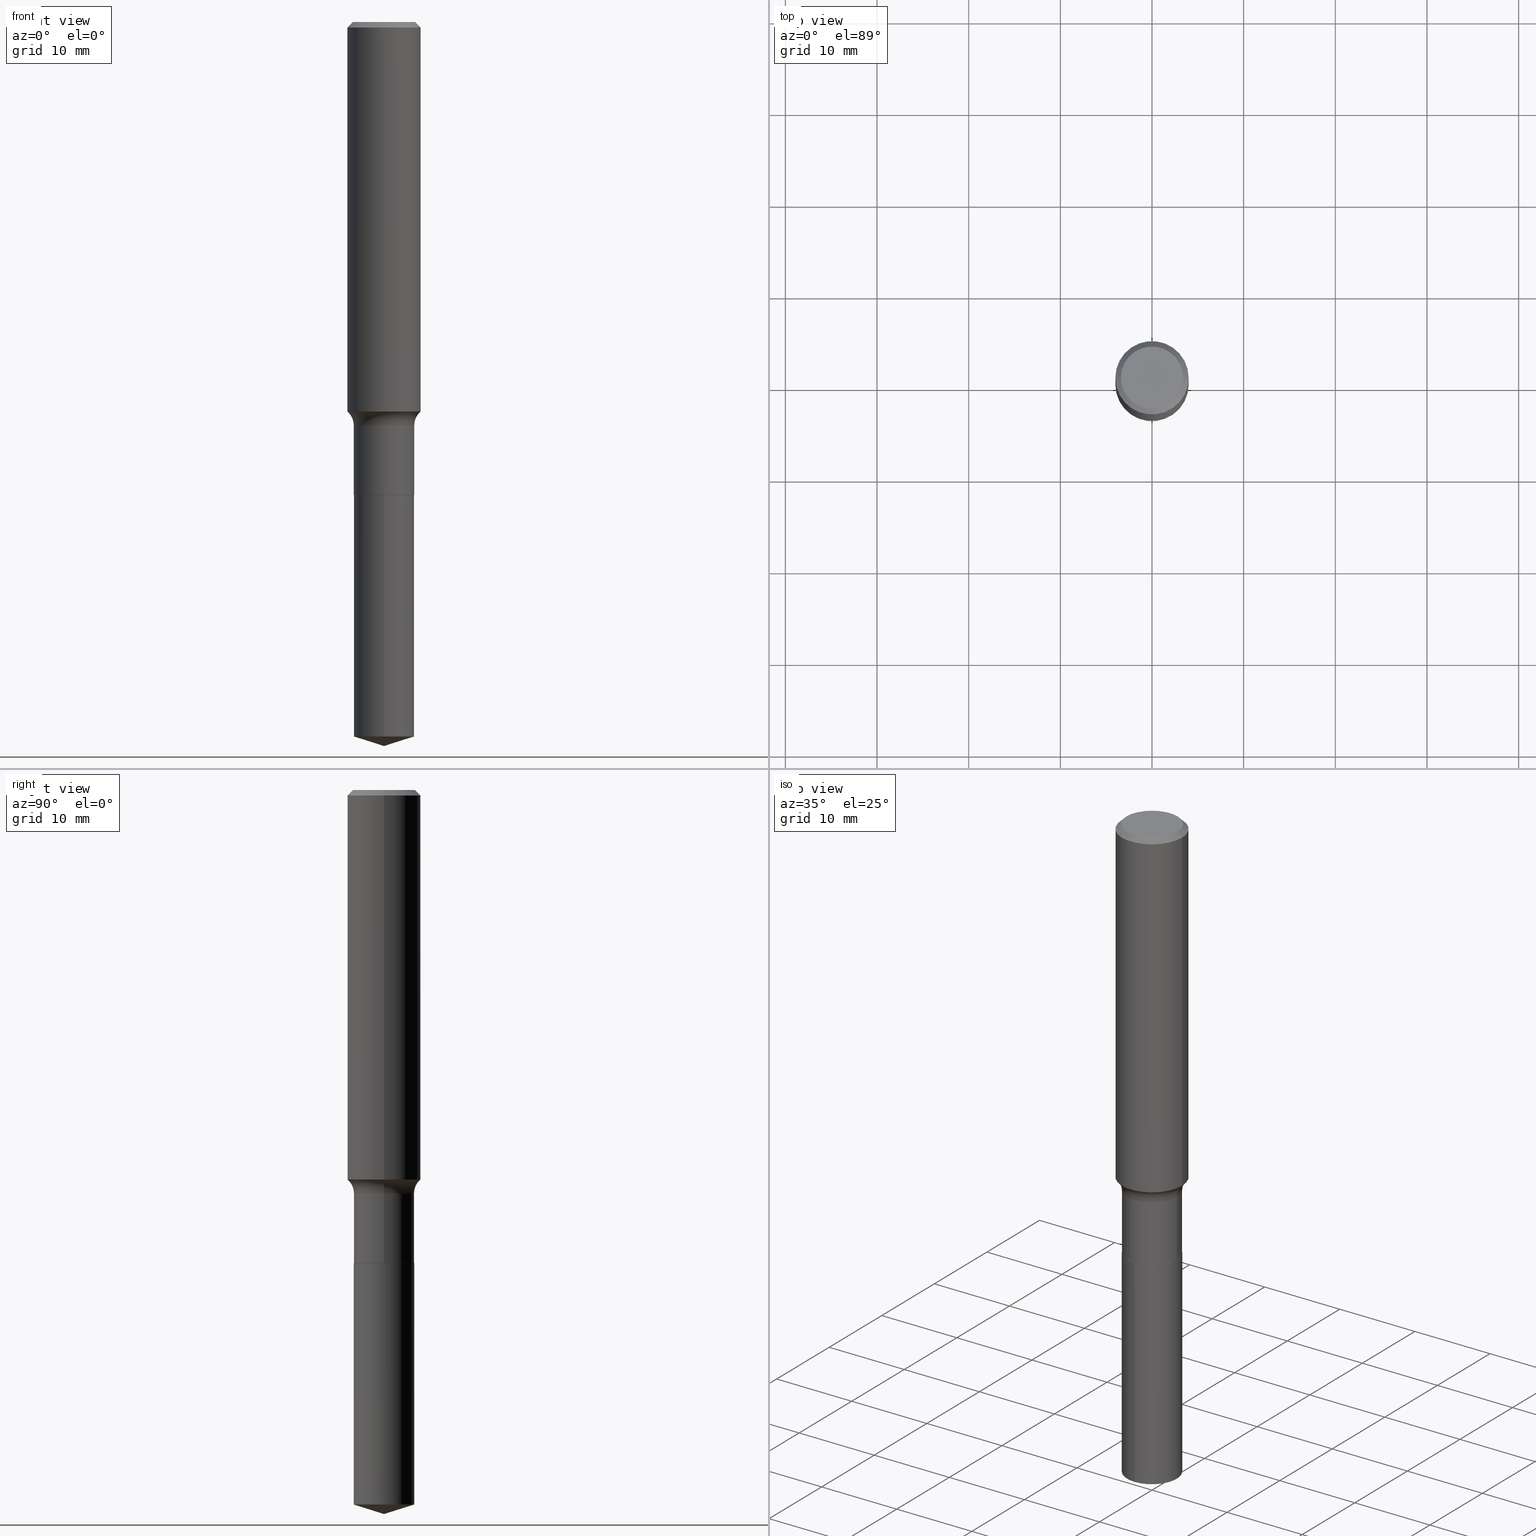
[diagram: canonical four-view strip — front | top / right | iso, engineering-drawing reading convention]
A machine part, canonical four-view strip (front | top / right | iso — engineering-drawing reading convention). The complete STEP part file that produces these views, byte-faithful:
ISO-10303-21;
HEADER;
FILE_DESCRIPTION (( 'STEP AP203' ),
    '1' );
FILE_NAME ('63757.STEP',
    '2024-04-19T15:07:55',
    ( '' ),
    ( '' ),
    'SwSTEP 2.0',
    'SolidWorks 2023',
    '' );
FILE_SCHEMA (( 'CONFIG_CONTROL_DESIGN' ));
ENDSEC;

DATA;
#1 = APPROVAL_PERSON_ORGANIZATION ( #460, #87, #428 ) ;
#2 = ORIENTED_EDGE ( 'NONE', *, *, #159, .F. ) ;
#3 = DIRECTION ( 'NONE',  ( 1.000000000000000000, -6.982962677686267499E-15, 4.876176775795936353E-29 ) ) ;
#4 = CC_DESIGN_PERSON_AND_ORGANIZATION_ASSIGNMENT ( #132, #359, ( #409 ) ) ;
#5 = ORIENTED_EDGE ( 'NONE', *, *, #432, .T. ) ;
#6 = CARTESIAN_POINT ( 'NONE',  ( 4.967725332884486328E-29, -7.092595191725966323E-15, -2.031400000000000095 ) ) ;
#7 = VECTOR ( 'NONE', #348, 39.37007874015748854 ) ;
#8 = FACE_OUTER_BOUND ( 'NONE', #310, .T. ) ;
#9 = LINE ( 'NONE', #272, #317 ) ;
#10 = AXIS2_PLACEMENT_3D ( 'NONE', #109, #303, #153 ) ;
#11 = CARTESIAN_POINT ( 'NONE',  ( 9.229950137524451930E-16, 0.1298999999999928823, -2.031400000000000539 ) ) ;
#12 = PLANE ( 'NONE',  #227 ) ;
#13 = CARTESIAN_POINT ( 'NONE',  ( 4.237019253596368185E-29, -6.049340567679635558E-15, -1.732600000000000362 ) ) ;
#14 = ORIENTED_EDGE ( 'NONE', *, *, #165, .F. ) ;
#15 = APPROVAL_ROLE ( '' ) ;
#16 = ORIENTED_EDGE ( 'NONE', *, *, #100, .F. ) ;
#17 = CARTESIAN_POINT ( 'NONE',  ( -8.867023575948636875E-28, 1.266037926868653398E-13, 36.25987874015748247 ) ) ;
#18 = AXIS2_PLACEMENT_3D ( 'NONE', #47, #172, #331 ) ;
#19 = DIRECTION ( 'NONE',  ( -6.982962677686266711E-15, -1.000000000000000000, 4.206078512185163024E-15 ) ) ;
#20 = CARTESIAN_POINT ( 'NONE',  ( 0.1298999999999999877, -7.997936302887991205E-15, -2.030900000000000372 ) ) ;
#21 = CYLINDRICAL_SURFACE ( 'NONE', #18, 0.1298999999999999877 ) ;
#22 = CARTESIAN_POINT ( 'NONE',  ( 4.237019253596368185E-29, -6.049340567679635558E-15, -1.732600000000000362 ) ) ;
#23 = FACE_OUTER_BOUND ( 'NONE', #278, .T. ) ;
#24 = AXIS2_PLACEMENT_3D ( 'NONE', #17, #215, #211 ) ;
#25 = VERTEX_POINT ( 'NONE', #377 ) ;
#26 = CIRCLE ( 'NONE', #478, 0.1293999999999999873 ) ;
#27 = ORIENTED_EDGE ( 'NONE', *, *, #453, .T. ) ;
#28 = EDGE_CURVE ( 'NONE', #84, #105, #141, .T. ) ;
#29 = ORIENTED_EDGE ( 'NONE', *, *, #449, .T. ) ;
#30 = AXIS2_PLACEMENT_3D ( 'NONE', #354, #164, #402 ) ;
#31 = ORIENTED_EDGE ( 'NONE', *, *, #437, .T. ) ;
#32 = CARTESIAN_POINT ( 'NONE',  ( 0.2078999999999999460, -7.501098508370609991E-15, -1.732600000000000362 ) ) ;
#33 = EDGE_LOOP ( 'NONE', ( #421, #342, #408, #129 ) ) ;
#34 = AXIS2_PLACEMENT_3D ( 'NONE', #42, #236, #322 ) ;
#35 = CC_DESIGN_PERSON_AND_ORGANIZATION_ASSIGNMENT ( #56, #473, ( #259 ) ) ;
#36 = CYLINDRICAL_SURFACE ( 'NONE', #296, 0.1298999999999999877 ) ;
#37 = DIRECTION ( 'NONE',  ( -2.445468806185136597E-29, 3.491481338843145583E-15, 1.000000000000000000 ) ) ;
#38 = LINE ( 'NONE', #200, #7 ) ;
#39 = EDGE_CURVE ( 'NONE', #415, #410, #362, .T. ) ;
#40 = ORIENTED_EDGE ( 'NONE', *, *, #385, .F. ) ;
#41 = CIRCLE ( 'NONE', #34, 0.07800000000000002764 ) ;
#42 = CARTESIAN_POINT ( 'NONE',  ( -0.2078999999999999460, -4.572122220034387458E-15, -1.732600000000000362 ) ) ;
#43 = CC_DESIGN_PERSON_AND_ORGANIZATION_ASSIGNMENT ( #251, #470, ( #403 ) ) ;
#44 = DIRECTION ( 'NONE',  ( -0.7071067811865450192, 2.468850131082230634E-15, -0.7071067811865500152 ) ) ;
#45 = DIRECTION ( 'NONE',  ( -1.000000000000000000, 6.982962677686265922E-15, -4.876176775795935793E-29 ) ) ;
#46 = CIRCLE ( 'NONE', #76, 0.1293999999999999873 ) ;
#47 = CARTESIAN_POINT ( 'NONE',  ( 0.000000000000000000, 0.000000000000000000, 0.000000000000000000 ) ) ;
#48 = APPROVAL ( #185, 'UNSPECIFIED' ) ;
#49 = CARTESIAN_POINT ( 'NONE',  ( 0.000000000000000000, 0.000000000000000000, 0.000000000000000000 ) ) ;
#50 = CYLINDRICAL_SURFACE ( 'NONE', #339, 0.1298999999999999877 ) ;
#51 = FACE_OUTER_BOUND ( 'NONE', #33, .T. ) ;
#52 = CLOSED_SHELL ( 'NONE', ( #133, #400, #143, #306, #189, #216, #119, #325, #275, #311, #248, #280 ) ) ;
#53 = ORIENTED_EDGE ( 'NONE', *, *, #210, .T. ) ;
#54 = COORDINATED_UNIVERSAL_TIME_OFFSET ( 5, 0, .BEHIND. ) ;
#55 = CARTESIAN_POINT ( 'NONE',  ( 4.967725332884486328E-29, -7.092595191725966323E-15, -2.031400000000000095 ) ) ;
#56 = PERSON_AND_ORGANIZATION ( #144, #457 ) ;
#57 = AXIS2_PLACEMENT_3D ( 'NONE', #448, #117, #416 ) ;
#58 = LOCAL_TIME ( 11, 7, 55.00000000000000000, #397 ) ;
#59 = COORDINATED_UNIVERSAL_TIME_OFFSET ( 5, 0, .BEHIND. ) ;
#60 = ORIENTED_EDGE ( 'NONE', *, *, #196, .F. ) ;
#61 = EDGE_CURVE ( 'NONE', #108, #161, #369, .T. ) ;
#62 = CARTESIAN_POINT ( 'NONE',  ( -9.070868518313962938E-16, -0.1299000000000070654, -2.031399999999999650 ) ) ;
#63 = ORIENTED_EDGE ( 'NONE', *, *, #432, .F. ) ;
#64 = VECTOR ( 'NONE', #283, 39.37007874015748143 ) ;
#65 = PERSON_AND_ORGANIZATION ( #144, #457 ) ;
#66 = ADVANCED_FACE ( 'NONE', ( #266 ), #434, .T. ) ;
#67 = DIRECTION ( 'NONE',  ( 1.000000000000000000, -6.982962677686265133E-15, 0.000000000000000000 ) ) ;
#68 = ORIENTED_EDGE ( 'NONE', *, *, #73, .T. ) ;
#69 = ORIENTED_EDGE ( 'NONE', *, *, #474, .F. ) ;
#70 = ORIENTED_EDGE ( 'NONE', *, *, #100, .T. ) ;
#71 = APPROVAL_DATE_TIME ( #152, #48 ) ;
#72 = AXIS2_PLACEMENT_3D ( 'NONE', #358, #327, #19 ) ;
#73 = EDGE_CURVE ( 'NONE', #161, #108, #230, .T. ) ;
#74 = CARTESIAN_POINT ( 'NONE',  ( 0.1575000000000000011, -1.163014681279185964E-15, -0.02362500000000015282 ) ) ;
#75 = VERTEX_POINT ( 'NONE', #263 ) ;
#76 = AXIS2_PLACEMENT_3D ( 'NONE', #407, #340, #67 ) ;
#77 = LINE ( 'NONE', #384, #223 ) ;
#78 = ORIENTED_EDGE ( 'NONE', *, *, #97, .T. ) ;
#79 = LINE ( 'NONE', #74, #64 ) ;
#80 = EDGE_CURVE ( 'NONE', #373, #415, #209, .T. ) ;
#81 = CARTESIAN_POINT ( 'NONE',  ( -9.070868518313706558E-16, -0.1299000000000107014, -3.069242687324619467 ) ) ;
#82 = ORIENTED_EDGE ( 'NONE', *, *, #367, .T. ) ;
#83 = DIRECTION ( 'NONE',  ( -2.445412223702241221E-29, 3.491562368179126260E-15, 1.000000000000000000 ) ) ;
#84 = VERTEX_POINT ( 'NONE', #257 ) ;
#85 = DIRECTION ( 'NONE',  ( 0.7071067811866199593, -2.468850131083015945E-15, 0.7071067811864750752 ) ) ;
#86 = FACE_OUTER_BOUND ( 'NONE', #268, .T. ) ;
#87 = APPROVAL ( #131, 'UNSPECIFIED' ) ;
#88 = APPROVAL_DATE_TIME ( #246, #87 ) ;
#89 = ORIENTED_EDGE ( 'NONE', *, *, #267, .F. ) ;
#90 = DIRECTION ( 'NONE',  ( 1.000000000000000000, -6.982962677686267499E-15, 4.876176775795936353E-29 ) ) ;
#91 = DIRECTION ( 'NONE',  ( -2.445412223702241221E-29, 3.491562368179126260E-15, 1.000000000000000000 ) ) ;
#92 = UNCERTAINTY_MEASURE_WITH_UNIT (LENGTH_MEASURE( 1.000000000000000082E-05 ), #212, 'distance_accuracy_value', 'NONE');
#93 = CIRCLE ( 'NONE', #430, 0.1575000000000001954 ) ;
#94 = ORIENTED_EDGE ( 'NONE', *, *, #308, .T. ) ;
#95 = CC_DESIGN_APPROVAL ( #87, ( #409 ) ) ;
#96 = FACE_OUTER_BOUND ( 'NONE', #343, .T. ) ;
#97 = EDGE_CURVE ( 'NONE', #338, #98, #46, .T. ) ;
#98 = VERTEX_POINT ( 'NONE', #224 ) ;
#99 = VECTOR ( 'NONE', #44, 39.37007874015748143 ) ;
#100 = EDGE_CURVE ( 'NONE', #75, #161, #260, .T. ) ;
#101 = AXIS2_PLACEMENT_3D ( 'NONE', #6, #316, #450 ) ;
#102 = TOROIDAL_SURFACE ( 'NONE', #417, 0.2078999999999999460, 0.07800000000000002764 ) ;
#103 = LINE ( 'NONE', #262, #252 ) ;
#104 = CIRCLE ( 'NONE', #382, 0.1298999999999999877 ) ;
#105 = VERTEX_POINT ( 'NONE', #277 ) ;
#106 = CARTESIAN_POINT ( 'NONE',  ( -0.1575000000000000011, 1.017330375105417098E-15, -0.02362500000000015282 ) ) ;
#107 = DIRECTION ( 'NONE',  ( 1.000000000000000000, -6.982962677686265922E-15, 0.000000000000000000 ) ) ;
#108 = VERTEX_POINT ( 'NONE', #81 ) ;
#109 = CARTESIAN_POINT ( 'NONE',  ( -8.867023575948636875E-28, 1.266037926868653398E-13, 36.25987874015748247 ) ) ;
#110 = EDGE_LOOP ( 'NONE', ( #187, #70, #386 ) ) ;
#111 = DIRECTION ( 'NONE',  ( -2.445412223702241221E-29, 3.491562368179126654E-15, 1.000000000000000000 ) ) ;
#112 = ORIENTED_EDGE ( 'NONE', *, *, #437, .F. ) ;
#113 = CONICAL_SURFACE ( 'NONE', #24, 124.8659371009138965, 1.265363707695889017 ) ;
#114 = DIRECTION ( 'NONE',  ( -2.445412223702241221E-29, 3.491562368179126654E-15, 1.000000000000000000 ) ) ;
#115 = ORIENTED_EDGE ( 'NONE', *, *, #486, .F. ) ;
#116 = LINE ( 'NONE', #183, #375 ) ;
#117 = DIRECTION ( 'NONE',  ( 2.445468806185136597E-29, -3.491481338843145583E-15, -1.000000000000000000 ) ) ;
#118 = CARTESIAN_POINT ( 'NONE',  ( -0.1338749999999999940, 9.760872517903331886E-16, 4.101342130337804525E-18 ) ) ;
#119 = ADVANCED_FACE ( 'NONE', ( #388 ), #245, .F. ) ;
#120 = CLOSED_SHELL ( 'NONE', ( #145, #66, #139, #391, #333 ) ) ;
#121 = VECTOR ( 'NONE', #195, 39.37007874015748143 ) ;
#122 = CARTESIAN_POINT ( 'NONE',  ( 0.1293999999999999873, -7.996190562218568913E-15, -2.031400000000000095 ) ) ;
#123 = SECURITY_CLASSIFICATION ( '', '', #171 ) ;
#124 = DIRECTION ( 'NONE',  ( -0.7071067811866199593, 7.493145998870616062E-15, 0.7071067811864750752 ) ) ;
#125 = ORIENTED_EDGE ( 'NONE', *, *, #320, .F. ) ;
#126 = ORIENTED_EDGE ( 'NONE', *, *, #320, .T. ) ;
#127 = CARTESIAN_POINT ( 'NONE',  ( -5.014852121625167883E-47, 7.159879756154482429E-33, 2.050671065172242981E-18 ) ) ;
#128 = EDGE_CURVE ( 'NONE', #305, #447, #398, .T. ) ;
#129 = ORIENTED_EDGE ( 'NONE', *, *, #28, .T. ) ;
#130 = DIRECTION ( 'NONE',  ( 1.000000000000000000, -6.982962677686266711E-15, 4.876170806578254279E-29 ) ) ;
#131 = APPROVAL_STATUS ( 'not_yet_approved' ) ;
#132 = PERSON_AND_ORGANIZATION ( #144, #457 ) ;
#133 = ADVANCED_FACE ( 'NONE', ( #86 ), #238, .T. ) ;
#134 = DIRECTION ( 'NONE',  ( 1.000000000000000000, -6.982962677686268288E-15, 0.000000000000000000 ) ) ;
#135 = CIRCLE ( 'NONE', #468, 0.1298999999999999599 ) ;
#136 = APPROVAL_STATUS ( 'not_yet_approved' ) ;
#137 = DIRECTION ( 'NONE',  ( -2.445468806185136597E-29, 3.491481338843145583E-15, 1.000000000000000000 ) ) ;
#138 = DIRECTION ( 'NONE',  ( 2.445468806185136597E-29, -3.491481338843145583E-15, -1.000000000000000000 ) ) ;
#139 = ADVANCED_FACE ( 'NONE', ( #23 ), #113, .T. ) ;
#140 = DIRECTION ( 'NONE',  ( 1.000000000000000000, -6.982962677686266711E-15, 4.883557194083112901E-29 ) ) ;
#141 = CIRCLE ( 'NONE', #162, 0.1575000000000000011 ) ;
#142 = CALENDAR_DATE ( 2024, 19, 4 ) ;
#143 = ADVANCED_FACE ( 'NONE', ( #287 ), #218, .T. ) ;
#144 = PERSON ( 'UNSPECIFIED', 'UNSPECIFIED', 'UNSPECIFIED', ('UNSPECIFIED'), ('UNSPECIFIED'), ('UNSPECIFIED') ) ;
#145 = ADVANCED_FACE ( 'NONE', ( #247 ), #50, .T. ) ;
#146 = ORIENTED_EDGE ( 'NONE', *, *, #39, .T. ) ;
#147 = AXIS2_PLACEMENT_3D ( 'NONE', #438, #114, #255 ) ;
#148 = ORIENTED_EDGE ( 'NONE', *, *, #445, .F. ) ;
#149 = DIRECTION ( 'NONE',  ( -2.438088387897960049E-29, 3.491481338843145188E-15, 1.000000000000000000 ) ) ;
#150 = ORIENTED_EDGE ( 'NONE', *, *, #97, .F. ) ;
#151 = AXIS2_PLACEMENT_3D ( 'NONE', #276, #269, #422 ) ;
#152 = DATE_AND_TIME ( #488, #458 ) ;
#153 = DIRECTION ( 'NONE',  ( -6.982962677686266711E-15, -1.000000000000000000, 3.500519750498737170E-15 ) ) ;
#154 = ORIENTED_EDGE ( 'NONE', *, *, #254, .F. ) ;
#155 = ORIENTED_EDGE ( 'NONE', *, *, #128, .F. ) ;
#156 = AXIS2_PLACEMENT_3D ( 'NONE', #175, #137, #90 ) ;
#157 = CARTESIAN_POINT ( 'NONE',  ( 0.1575000000000002232, -6.941308745199630134E-15, -1.673069839576900142 ) ) ;
#158 = FACE_OUTER_BOUND ( 'NONE', #184, .T. ) ;
#159 = EDGE_CURVE ( 'NONE', #191, #265, #427, .T. ) ;
#160 = CARTESIAN_POINT ( 'NONE',  ( 5.777420054612421980E-31, -8.248624663016985234E-17, -0.02362500000000015282 ) ) ;
#161 = VERTEX_POINT ( 'NONE', #467 ) ;
#162 = AXIS2_PLACEMENT_3D ( 'NONE', #442, #477, #107 ) ;
#163 = CARTESIAN_POINT ( 'NONE',  ( -0.1298999999999999599, -5.647099995615719937E-15, -1.732600000000000362 ) ) ;
#164 = DIRECTION ( 'NONE',  ( -2.445468806185136597E-29, 3.491481338843145583E-15, 1.000000000000000000 ) ) ;
#165 = EDGE_CURVE ( 'NONE', #25, #480, #104, .T. ) ;
#166 = CARTESIAN_POINT ( 'NONE',  ( 4.966502598481394648E-29, -7.090849451056544819E-15, -2.030900000000000372 ) ) ;
#167 = DIRECTION ( 'NONE',  ( -2.445468806185136597E-29, 3.491481338843145583E-15, 1.000000000000000000 ) ) ;
#168 = ORIENTED_EDGE ( 'NONE', *, *, #80, .T. ) ;
#169 = CC_DESIGN_APPROVAL ( #356, ( #259 ) ) ;
#170 = PERSON_AND_ORGANIZATION ( #144, #457 ) ;
#171 = SECURITY_CLASSIFICATION_LEVEL ( 'unclassified' ) ;
#172 = DIRECTION ( 'NONE',  ( -2.445468806185136597E-29, 3.491481338843145583E-15, 1.000000000000000000 ) ) ;
#173 = DIRECTION ( 'NONE',  ( -2.445468806185136597E-29, 3.491481338843145583E-15, 1.000000000000000000 ) ) ;
#174 = CALENDAR_DATE ( 2024, 19, 4 ) ;
#175 = CARTESIAN_POINT ( 'NONE',  ( 0.000000000000000000, 0.000000000000000000, 0.000000000000000000 ) ) ;
#176 = CC_DESIGN_PERSON_AND_ORGANIZATION_ASSIGNMENT ( #394, #206, ( #409 ) ) ;
#177 = CARTESIAN_POINT ( 'NONE',  ( 5.777420054612421980E-31, -8.248624663016985234E-17, -0.02362500000000015282 ) ) ;
#178 = DIRECTION ( 'NONE',  ( -2.445468806185136597E-29, 3.491481338843145583E-15, 1.000000000000000000 ) ) ;
#179 = CARTESIAN_POINT ( 'NONE',  ( 0.1575000000000000844, -1.099816621735587677E-15, 7.679978421878603638E-30 ) ) ;
#180 = AXIS2_PLACEMENT_3D ( 'NONE', #13, #167, #426 ) ;
#181 = CC_DESIGN_DATE_AND_TIME_ASSIGNMENT ( #436, #324, ( #259 ) ) ;
#182 = DIRECTION ( 'NONE',  ( -2.445468806185136597E-29, 3.491481338843145583E-15, 1.000000000000000000 ) ) ;
#183 = CARTESIAN_POINT ( 'NONE',  ( -9.070868518313962938E-16, -0.1299000000000070654, -2.031399999999999650 ) ) ;
#184 = EDGE_LOOP ( 'NONE', ( #155, #345, #5, #154 ) ) ;
#185 = APPROVAL_STATUS ( 'not_yet_approved' ) ;
#186 = APPROVAL_PERSON_ORGANIZATION ( #65, #48, #476 ) ;
#187 = ORIENTED_EDGE ( 'NONE', *, *, #465, .F. ) ;
#188 = DIRECTION ( 'NONE',  ( -6.982962677686266711E-15, -1.000000000000000000, 3.491481338843145583E-15 ) ) ;
#189 = ADVANCED_FACE ( 'NONE', ( #290 ), #300, .T. ) ;
#190 = VECTOR ( 'NONE', #233, 39.37007874015748143 ) ;
#191 = VERTEX_POINT ( 'NONE', #62 ) ;
#192 = CARTESIAN_POINT ( 'NONE',  ( 4.237019253596368185E-29, -6.049340567679635558E-15, -1.732600000000000362 ) ) ;
#193 = EDGE_CURVE ( 'NONE', #447, #305, #412, .T. ) ;
#194 = FACE_OUTER_BOUND ( 'NONE', #225, .T. ) ;
#195 = DIRECTION ( 'NONE',  ( -2.445468806185136877E-29, 3.491481338843145188E-15, 1.000000000000000000 ) ) ;
#196 = EDGE_CURVE ( 'NONE', #378, #84, #341, .T. ) ;
#197 = DIRECTION ( 'NONE',  ( -2.445412223702241221E-29, 3.491562368179126654E-15, 1.000000000000000000 ) ) ;
#198 = CARTESIAN_POINT ( 'NONE',  ( 4.967725332884486328E-29, -7.092595191725966323E-15, -2.031400000000000095 ) ) ;
#199 = CARTESIAN_POINT ( 'NONE',  ( -1.002970424325033577E-46, 1.431975951230896486E-32, 4.101342130344485961E-18 ) ) ;
#200 = CARTESIAN_POINT ( 'NONE',  ( 7.605721098158710659E-29, -1.085945727751071830E-14, -3.110199999999999854 ) ) ;
#201 = DIRECTION ( 'NONE',  ( -2.445468806185136597E-29, 3.491481338843145583E-15, 1.000000000000000000 ) ) ;
#202 = CARTESIAN_POINT ( 'NONE',  ( 0.1338749999999999940, -1.040731925365424925E-15, 4.101342130351393887E-18 ) ) ;
#203 = FACE_OUTER_BOUND ( 'NONE', #376, .T. ) ;
#204 = DIRECTION ( 'NONE',  ( 1.000000000000000000, -6.982962677686268288E-15, 0.000000000000000000 ) ) ;
#205 = DIRECTION ( 'NONE',  ( -2.445468806185136597E-29, 3.491481338843145583E-15, 1.000000000000000000 ) ) ;
#206 = PERSON_AND_ORGANIZATION_ROLE ( 'creator' ) ;
#207 = VECTOR ( 'NONE', #294, 39.37007874015748143 ) ;
#208 = ADVANCED_BREP_SHAPE_REPRESENTATION ( '63757', ( #315, #462, #309 ), #492 ) ;
#209 = CIRCLE ( 'NONE', #483, 0.07800000000000002764 ) ;
#210 = EDGE_CURVE ( 'NONE', #480, #415, #270, .T. ) ;
#211 = DIRECTION ( 'NONE',  ( -6.982962677686266711E-15, -1.000000000000000000, 3.500519750498737170E-15 ) ) ;
#212 =( CONVERSION_BASED_UNIT ( 'INCH', #328 ) LENGTH_UNIT ( ) NAMED_UNIT ( #285 ) );
#213 =( LENGTH_UNIT ( ) NAMED_UNIT ( * ) SI_UNIT ( $, .METRE. ) );
#214 = LOCAL_TIME ( 11, 7, 55.00000000000000000, #54 ) ;
#215 = DIRECTION ( 'NONE',  ( -2.445412223702241221E-29, 3.491562368179126654E-15, 1.000000000000000000 ) ) ;
#216 = ADVANCED_FACE ( 'NONE', ( #96 ), #21, .T. ) ;
#217 = CARTESIAN_POINT ( 'NONE',  ( 4.967725332884486328E-29, -7.092595191725966323E-15, -2.031400000000000095 ) ) ;
#218 = CYLINDRICAL_SURFACE ( 'NONE', #156, 0.1575000000000000844 ) ;
#219 = ORIENTED_EDGE ( 'NONE', *, *, #210, .F. ) ;
#220 = PLANE ( 'NONE',  #319 ) ;
#221 = DIRECTION ( 'NONE',  ( 1.000000000000000000, -6.982962677686268288E-15, 0.000000000000000000 ) ) ;
#222 = ORIENTED_EDGE ( 'NONE', *, *, #28, .F. ) ;
#223 = VECTOR ( 'NONE', #83, 39.37007874015748143 ) ;
#224 = CARTESIAN_POINT ( 'NONE',  ( 0.1293999999999999873, -7.996190562218568913E-15, -2.031400000000000095 ) ) ;
#225 = EDGE_LOOP ( 'NONE', ( #112, #150 ) ) ;
#226 = APPLICATION_CONTEXT ( 'configuration controlled 3d designs of mechanical parts and assemblies' ) ;
#227 = AXIS2_PLACEMENT_3D ( 'NONE', #127, #380, #45 ) ;
#228 = EDGE_CURVE ( 'NONE', #25, #410, #103, .T. ) ;
#229 = ORIENTED_EDGE ( 'NONE', *, *, #159, .T. ) ;
#230 = CIRCLE ( 'NONE', #446, 0.1298999999999999877 ) ;
#231 = EDGE_LOOP ( 'NONE', ( #126, #258, #336, #219 ) ) ;
#232 = DIRECTION ( 'NONE',  ( -6.982962677686266711E-15, -1.000000000000000000, 4.206078512185163024E-15 ) ) ;
#233 = DIRECTION ( 'NONE',  ( -2.445468806185136877E-29, 3.491481338843145188E-15, 1.000000000000000000 ) ) ;
#234 = CC_DESIGN_SECURITY_CLASSIFICATION ( #123, ( #409 ) ) ;
#235 = CC_DESIGN_DATE_AND_TIME_ASSIGNMENT ( #444, #297, ( #123 ) ) ;
#236 = DIRECTION ( 'NONE',  ( 7.105427357601001859E-15, 1.000000000000000000, -3.491481338843145583E-15 ) ) ;
#237 = ORIENTED_EDGE ( 'NONE', *, *, #228, .F. ) ;
#238 = CONICAL_SURFACE ( 'NONE', #30, 0.1293999999999999873, 0.7853981633975507526 ) ;
#239 = DIRECTION ( 'NONE',  ( 1.000000000000000000, -6.982962677686265922E-15, 0.000000000000000000 ) ) ;
#240 = ORIENTED_EDGE ( 'NONE', *, *, #453, .F. ) ;
#241 = AXIS2_PLACEMENT_3D ( 'NONE', #318, #425, #3 ) ;
#242 = CARTESIAN_POINT ( 'NONE',  ( -0.1293999999999999873, -6.170503664478285769E-15, -2.031400000000000095 ) ) ;
#243 = EDGE_LOOP ( 'NONE', ( #60, #406, #94, #222 ) ) ;
#244 = CARTESIAN_POINT ( 'NONE',  ( 4.091440103254479694E-29, -5.841492123464042654E-15, -1.673069839576900142 ) ) ;
#245 = TOROIDAL_SURFACE ( 'NONE', #180, 0.2078999999999999460, 0.07800000000000002764 ) ;
#246 = DATE_AND_TIME ( #174, #374 ) ;
#247 = FACE_OUTER_BOUND ( 'NONE', #273, .T. ) ;
#248 = ADVANCED_FACE ( 'NONE', ( #194 ), #220, .F. ) ;
#249 = COORDINATED_UNIVERSAL_TIME_OFFSET ( 5, 0, .BEHIND. ) ;
#250 = ORIENTED_EDGE ( 'NONE', *, *, #449, .F. ) ;
#251 = PERSON_AND_ORGANIZATION ( #144, #457 ) ;
#252 = VECTOR ( 'NONE', #411, 39.37007874015748143 ) ;
#253 = CALENDAR_DATE ( 2024, 19, 4 ) ;
#254 = EDGE_CURVE ( 'NONE', #447, #84, #335, .T. ) ;
#255 = DIRECTION ( 'NONE',  ( -6.982962677686266711E-15, -1.000000000000000000, 4.206078512185163024E-15 ) ) ;
#256 = ORIENTED_EDGE ( 'NONE', *, *, #486, .T. ) ;
#257 = CARTESIAN_POINT ( 'NONE',  ( -0.1575000000000000011, -1.842884376224946844E-15, -0.02362500000000015282 ) ) ;
#258 = ORIENTED_EDGE ( 'NONE', *, *, #228, .T. ) ;
#259 = PRODUCT_DEFINITION ( 'UNKNOWN', '', #409, #463 ) ;
#260 = LINE ( 'NONE', #284, #392 ) ;
#261 = ORIENTED_EDGE ( 'NONE', *, *, #367, .F. ) ;
#262 = CARTESIAN_POINT ( 'NONE',  ( -0.1298999999999999877, 9.229950137523700540E-16, -6.389696682241121810E-30 ) ) ;
#263 = CARTESIAN_POINT ( 'NONE',  ( 7.605721098158710659E-29, -1.085945727751072146E-14, -3.110199999999999854 ) ) ;
#264 = AXIS2_PLACEMENT_3D ( 'NONE', #177, #138, #360 ) ;
#265 = VERTEX_POINT ( 'NONE', #11 ) ;
#266 = FACE_OUTER_BOUND ( 'NONE', #110, .T. ) ;
#267 = EDGE_CURVE ( 'NONE', #108, #191, #116, .T. ) ;
#268 = EDGE_LOOP ( 'NONE', ( #31, #29, #125, #40 ) ) ;
#269 = DIRECTION ( 'NONE',  ( 2.445412223702241221E-29, -3.491562368179126260E-15, -1.000000000000000000 ) ) ;
#270 = LINE ( 'NONE', #304, #190 ) ;
#271 = CONICAL_SURFACE ( 'NONE', #299, 0.1293999999999999873, 0.7853981633975507526 ) ;
#272 = CARTESIAN_POINT ( 'NONE',  ( -0.1293999999999999873, -6.173152891652396970E-15, -2.031400000000000095 ) ) ;
#273 = EDGE_LOOP ( 'NONE', ( #485, #455, #2, #89 ) ) ;
#274 = AXIS2_PLACEMENT_3D ( 'NONE', #199, #201, #350 ) ;
#275 = ADVANCED_FACE ( 'NONE', ( #51 ), #472, .T. ) ;
#276 = CARTESIAN_POINT ( 'NONE',  ( 4.967725332884486328E-29, -7.092595191725966323E-15, -2.031400000000000095 ) ) ;
#277 = CARTESIAN_POINT ( 'NONE',  ( 0.1575000000000000011, -1.182302868365756679E-15, -0.02362500000000015282 ) ) ;
#278 = EDGE_LOOP ( 'NONE', ( #16, #301, #423 ) ) ;
#279 = CARTESIAN_POINT ( 'NONE',  ( 4.091440103254479694E-29, -5.841492123464042654E-15, -1.673069839576900142 ) ) ;
#280 = ADVANCED_FACE ( 'NONE', ( #433 ), #271, .T. ) ;
#281 = VECTOR ( 'NONE', #85, 39.37007874015748143 ) ;
#282 = ORIENTED_EDGE ( 'NONE', *, *, #267, .T. ) ;
#283 = DIRECTION ( 'NONE',  ( 0.7071067811865450192, -7.319954787623246579E-15, -0.7071067811865500152 ) ) ;
#284 = CARTESIAN_POINT ( 'NONE',  ( 7.605952997275504108E-29, -1.085912807152449713E-14, -3.110199999999999854 ) ) ;
#285 = DIMENSIONAL_EXPONENTS ( 1.000000000000000000, 0.000000000000000000, 0.000000000000000000, 0.000000000000000000, 0.000000000000000000, 0.000000000000000000, 0.000000000000000000 ) ;
#286 = COORDINATED_UNIVERSAL_TIME_OFFSET ( 5, 0, .BEHIND. ) ;
#287 = FACE_OUTER_BOUND ( 'NONE', #439, .T. ) ;
#288 = PERSON_AND_ORGANIZATION ( #144, #457 ) ;
#289 = CIRCLE ( 'NONE', #349, 0.1575000000000001954 ) ;
#290 = FACE_OUTER_BOUND ( 'NONE', #231, .T. ) ;
#291 = EDGE_LOOP ( 'NONE', ( #261, #240, #168, #146 ) ) ;
#292 = DIRECTION ( 'NONE',  ( -6.982962677686266711E-15, -1.000000000000000000, 4.206078512185163024E-15 ) ) ;
#293 = DIRECTION ( 'NONE',  ( -2.445468806185136597E-29, 3.491481338843145583E-15, 1.000000000000000000 ) ) ;
#294 = DIRECTION ( 'NONE',  ( -2.445468806185136877E-29, 3.491481338843145188E-15, 1.000000000000000000 ) ) ;
#295 = CARTESIAN_POINT ( 'NONE',  ( 4.237019253596368185E-29, -6.049340567679635558E-15, -1.732600000000000362 ) ) ;
#296 = AXIS2_PLACEMENT_3D ( 'NONE', #454, #197, #346 ) ;
#297 = DATE_TIME_ROLE ( 'classification_date' ) ;
#298 = DIRECTION ( 'NONE',  ( 1.000000000000000000, -6.982962677686269866E-15, 0.000000000000000000 ) ) ;
#299 = AXIS2_PLACEMENT_3D ( 'NONE', #55, #173, #466 ) ;
#300 = CYLINDRICAL_SURFACE ( 'NONE', #440, 0.1298999999999999877 ) ;
#301 = ORIENTED_EDGE ( 'NONE', *, *, #465, .T. ) ;
#302 = AXIS2_PLACEMENT_3D ( 'NONE', #459, #205, #130 ) ;
#303 = DIRECTION ( 'NONE',  ( -2.445412223702241221E-29, 3.491562368179126654E-15, 1.000000000000000000 ) ) ;
#304 = CARTESIAN_POINT ( 'NONE',  ( 0.1298999999999999877, -9.070868518314457948E-16, 6.334153631758919429E-30 ) ) ;
#305 = VERTEX_POINT ( 'NONE', #202 ) ;
#306 = ADVANCED_FACE ( 'NONE', ( #361 ), #102, .F. ) ;
#307 = ORIENTED_EDGE ( 'NONE', *, *, #308, .F. ) ;
#308 = EDGE_CURVE ( 'NONE', #373, #105, #484, .T. ) ;
#309 = AXIS2_PLACEMENT_3D ( 'NONE', #49, #330, #464 ) ;
#310 = EDGE_LOOP ( 'NONE', ( #229, #312 ) ) ;
#311 = ADVANCED_FACE ( 'NONE', ( #475 ), #12, .F. ) ;
#312 = ORIENTED_EDGE ( 'NONE', *, *, #445, .T. ) ;
#313 = APPLICATION_CONTEXT ( 'configuration controlled 3d designs of mechanical parts and assemblies' ) ;
#314 = CARTESIAN_POINT ( 'NONE',  ( -0.1575000000000002232, -4.722387314641883473E-15, -1.673069839576900142 ) ) ;
#315 = MANIFOLD_SOLID_BREP ( 'Body-Move/Copy2[1]', #120 ) ;
#316 = DIRECTION ( 'NONE',  ( -2.445412223702241221E-29, 3.491562368179126654E-15, 1.000000000000000000 ) ) ;
#317 = VECTOR ( 'NONE', #124, 39.37007874015748143 ) ;
#318 = CARTESIAN_POINT ( 'NONE',  ( 0.000000000000000000, 0.000000000000000000, 0.000000000000000000 ) ) ;
#319 = AXIS2_PLACEMENT_3D ( 'NONE', #217, #149, #344 ) ;
#320 = EDGE_CURVE ( 'NONE', #480, #25, #337, .T. ) ;
#321 = FACE_OUTER_BOUND ( 'NONE', #243, .T. ) ;
#322 = DIRECTION ( 'NONE',  ( -1.000000000000000000, 7.105427357601001859E-15, 0.000000000000000000 ) ) ;
#323 = CONICAL_SURFACE ( 'NONE', #57, 0.1575000000000000011, 0.7853981633974447263 ) ;
#324 = DATE_TIME_ROLE ( 'creation_date' ) ;
#325 = ADVANCED_FACE ( 'NONE', ( #321 ), #355, .T. ) ;
#326 = DIRECTION ( 'NONE',  ( 1.000000000000000000, -6.982962677686265922E-15, 0.000000000000000000 ) ) ;
#327 = DIRECTION ( 'NONE',  ( -2.445412223702241221E-29, 3.491562368179126654E-15, 1.000000000000000000 ) ) ;
#328 = LENGTH_MEASURE_WITH_UNIT ( LENGTH_MEASURE( 0.02539999999999999897 ), #213 );
#329 = AXIS2_PLACEMENT_3D ( 'NONE', #160, #37, #353 ) ;
#330 = DIRECTION ( 'NONE',  ( 0.000000000000000000, 0.000000000000000000, 1.000000000000000000 ) ) ;
#331 = DIRECTION ( 'NONE',  ( 1.000000000000000000, -6.982962677686265133E-15, 4.876176775795935232E-29 ) ) ;
#332 = APPROVAL_DATE_TIME ( #401, #356 ) ;
#333 = ADVANCED_FACE ( 'NONE', ( #8 ), #451, .F. ) ;
#334 = DIRECTION ( 'NONE',  ( 1.000000000000000000, -6.982962677686265133E-15, 4.876176775795935232E-29 ) ) ;
#335 = LINE ( 'NONE', #106, #99 ) ;
#336 = ORIENTED_EDGE ( 'NONE', *, *, #39, .F. ) ;
#337 = CIRCLE ( 'NONE', #481, 0.1298999999999999877 ) ;
#338 = VERTEX_POINT ( 'NONE', #242 ) ;
#339 = AXIS2_PLACEMENT_3D ( 'NONE', #364, #469, #292 ) ;
#340 = DIRECTION ( 'NONE',  ( -2.445468806185136597E-29, 3.491481338843145583E-15, 1.000000000000000000 ) ) ;
#341 = LINE ( 'NONE', #490, #121 ) ;
#342 = ORIENTED_EDGE ( 'NONE', *, *, #193, .F. ) ;
#343 = EDGE_LOOP ( 'NONE', ( #237, #441, #53, #115 ) ) ;
#344 = DIRECTION ( 'NONE',  ( 1.000000000000000000, -6.982962677686265922E-15, 4.876176775795935793E-29 ) ) ;
#345 = ORIENTED_EDGE ( 'NONE', *, *, #351, .T. ) ;
#346 = DIRECTION ( 'NONE',  ( -6.982962677686266711E-15, -1.000000000000000000, 4.206078512185163024E-15 ) ) ;
#347 = DIRECTION ( 'NONE',  ( -2.445468806185136597E-29, 3.491481338843145583E-15, 1.000000000000000000 ) ) ;
#348 = DIRECTION ( 'NONE',  ( -6.659769872151625778E-15, -0.9537169507482258224, 0.3007057995042763388 ) ) ;
#349 = AXIS2_PLACEMENT_3D ( 'NONE', #244, #389, #326 ) ;
#350 = DIRECTION ( 'NONE',  ( 1.000000000000000000, -6.982962677686266711E-15, 4.876170806578254279E-29 ) ) ;
#351 = EDGE_CURVE ( 'NONE', #305, #105, #79, .T. ) ;
#352 = ORIENTED_EDGE ( 'NONE', *, *, #196, .T. ) ;
#353 = DIRECTION ( 'NONE',  ( 1.000000000000000000, -6.982962677686265922E-15, 0.000000000000000000 ) ) ;
#354 = CARTESIAN_POINT ( 'NONE',  ( 4.967725332884486328E-29, -7.092595191725966323E-15, -2.031400000000000095 ) ) ;
#355 = CYLINDRICAL_SURFACE ( 'NONE', #241, 0.1575000000000000844 ) ;
#356 = APPROVAL ( #136, 'UNSPECIFIED' ) ;
#357 = APPLICATION_PROTOCOL_DEFINITION ( 'international standard', 'config_control_design', 1994, #226 ) ;
#358 = CARTESIAN_POINT ( 'NONE',  ( 4.967725332884486328E-29, -7.092595191725966323E-15, -2.031400000000000095 ) ) ;
#359 = PERSON_AND_ORGANIZATION_ROLE ( 'design_supplier' ) ;
#360 = DIRECTION ( 'NONE',  ( -1.000000000000000000, 6.982962677686265922E-15, 0.000000000000000000 ) ) ;
#361 = FACE_OUTER_BOUND ( 'NONE', #414, .T. ) ;
#362 = CIRCLE ( 'NONE', #420, 0.1298999999999999599 ) ;
#363 = CALENDAR_DATE ( 2024, 19, 4 ) ;
#364 = CARTESIAN_POINT ( 'NONE',  ( 4.967725332884486328E-29, -7.092595191725966323E-15, -2.031400000000000095 ) ) ;
#365 = CARTESIAN_POINT ( 'NONE',  ( 4.966502598481394648E-29, -7.090849451056544819E-15, -2.030900000000000372 ) ) ;
#366 = APPLICATION_PROTOCOL_DEFINITION ( 'international standard', 'config_control_design', 1994, #313 ) ;
#367 = EDGE_CURVE ( 'NONE', #378, #410, #41, .T. ) ;
#368 = MECHANICAL_CONTEXT ( 'NONE', #313, 'mechanical' ) ;
#369 = CIRCLE ( 'NONE', #147, 0.1298999999999999877 ) ;
#370 = ORIENTED_EDGE ( 'NONE', *, *, #385, .T. ) ;
#371 = CIRCLE ( 'NONE', #329, 0.1575000000000000011 ) ;
#372 = CC_DESIGN_APPROVAL ( #48, ( #123 ) ) ;
#373 = VERTEX_POINT ( 'NONE', #157 ) ;
#374 = LOCAL_TIME ( 11, 7, 55.00000000000000000, #286 ) ;
#375 = VECTOR ( 'NONE', #91, 39.37007874015748143 ) ;
#376 = EDGE_LOOP ( 'NONE', ( #390, #68, #282, #148 ) ) ;
#377 = CARTESIAN_POINT ( 'NONE',  ( -0.1299000000000000155, -5.647099995615719937E-15, -2.030900000000000372 ) ) ;
#378 = VERTEX_POINT ( 'NONE', #314 ) ;
#379 = APPROVAL_PERSON_ORGANIZATION ( #170, #356, #15 ) ;
#380 = DIRECTION ( 'NONE',  ( 2.438088387897960049E-29, -3.491481338843145188E-15, -1.000000000000000000 ) ) ;
#381 = CARTESIAN_POINT ( 'NONE',  ( 0.1298999999999999599, -6.956427419511081156E-15, -1.732600000000000362 ) ) ;
#382 = AXIS2_PLACEMENT_3D ( 'NONE', #365, #479, #134 ) ;
#383 = EDGE_LOOP ( 'NONE', ( #250, #78, #370, #14 ) ) ;
#384 = CARTESIAN_POINT ( 'NONE',  ( 9.229950137524195551E-16, 0.1298999999999929100, -2.031400000000000539 ) ) ;
#385 = EDGE_CURVE ( 'NONE', #98, #480, #456, .T. ) ;
#386 = ORIENTED_EDGE ( 'NONE', *, *, #61, .F. ) ;
#387 = DIRECTION ( 'NONE',  ( -2.445468806185136597E-29, 3.491481338843145583E-15, 1.000000000000000000 ) ) ;
#388 = FACE_OUTER_BOUND ( 'NONE', #291, .T. ) ;
#389 = DIRECTION ( 'NONE',  ( -2.445468806185136597E-29, 3.491481338843145583E-15, 1.000000000000000000 ) ) ;
#390 = ORIENTED_EDGE ( 'NONE', *, *, #461, .F. ) ;
#391 = ADVANCED_FACE ( 'NONE', ( #203 ), #36, .T. ) ;
#392 = VECTOR ( 'NONE', #452, 39.37007874015748854 ) ;
#393 =( NAMED_UNIT ( * ) SI_UNIT ( $, .STERADIAN. ) SOLID_ANGLE_UNIT ( ) );
#394 = PERSON_AND_ORGANIZATION ( #144, #457 ) ;
#395 = CIRCLE ( 'NONE', #101, 0.1298999999999999877 ) ;
#396 = LOCAL_TIME ( 11, 7, 55.00000000000000000, #249 ) ;
#397 = COORDINATED_UNIVERSAL_TIME_OFFSET ( 5, 0, .BEHIND. ) ;
#398 = CIRCLE ( 'NONE', #274, 0.1338749999999999940 ) ;
#399 =( NAMED_UNIT ( * ) PLANE_ANGLE_UNIT ( ) SI_UNIT ( $, .RADIAN. ) );
#400 = ADVANCED_FACE ( 'NONE', ( #158 ), #323, .T. ) ;
#401 = DATE_AND_TIME ( #253, #214 ) ;
#402 = DIRECTION ( 'NONE',  ( 1.000000000000000000, -6.982962677686265133E-15, 0.000000000000000000 ) ) ;
#403 = PRODUCT ( '63757', '63757', '', ( #368 ) ) ;
#404 = CC_DESIGN_PERSON_AND_ORGANIZATION_ASSIGNMENT ( #288, #429, ( #123 ) ) ;
#405 = SHAPE_DEFINITION_REPRESENTATION ( #487, #208 ) ;
#406 = ORIENTED_EDGE ( 'NONE', *, *, #474, .T. ) ;
#407 = CARTESIAN_POINT ( 'NONE',  ( 4.967725332884486328E-29, -7.092595191725966323E-15, -2.031400000000000095 ) ) ;
#408 = ORIENTED_EDGE ( 'NONE', *, *, #254, .T. ) ;
#409 = PRODUCT_DEFINITION_FORMATION_WITH_SPECIFIED_SOURCE ( 'ANY', '', #403, .NOT_KNOWN. ) ;
#410 = VERTEX_POINT ( 'NONE', #163 ) ;
#411 = DIRECTION ( 'NONE',  ( -2.445468806185136877E-29, 3.491481338843145188E-15, 1.000000000000000000 ) ) ;
#412 = CIRCLE ( 'NONE', #302, 0.1338749999999999940 ) ;
#413 = CARTESIAN_POINT ( 'NONE',  ( 7.505678526748094738E-29, -1.071628766287850460E-14, -3.069242687324619911 ) ) ;
#414 = EDGE_LOOP ( 'NONE', ( #69, #82, #256, #491 ) ) ;
#415 = VERTEX_POINT ( 'NONE', #381 ) ;
#416 = DIRECTION ( 'NONE',  ( -1.000000000000000000, 6.982962677686265922E-15, 0.000000000000000000 ) ) ;
#417 = AXIS2_PLACEMENT_3D ( 'NONE', #22, #178, #140 ) ;
#418 = PRODUCT_RELATED_PRODUCT_CATEGORY ( 'detail', '', ( #403 ) ) ;
#419 = DIRECTION ( 'NONE',  ( -2.445468806185136597E-29, 3.491481338843145583E-15, 1.000000000000000000 ) ) ;
#420 = AXIS2_PLACEMENT_3D ( 'NONE', #192, #489, #298 ) ;
#421 = ORIENTED_EDGE ( 'NONE', *, *, #351, .F. ) ;
#422 = DIRECTION ( 'NONE',  ( 6.982962677686265922E-15, 1.000000000000000000, -3.491562368179126260E-15 ) ) ;
#423 = ORIENTED_EDGE ( 'NONE', *, *, #73, .F. ) ;
#424 = DIRECTION ( 'NONE',  ( 1.000000000000000000, -6.982962677686265133E-15, 0.000000000000000000 ) ) ;
#425 = DIRECTION ( 'NONE',  ( -2.445468806185136597E-29, 3.491481338843145583E-15, 1.000000000000000000 ) ) ;
#426 = DIRECTION ( 'NONE',  ( 1.000000000000000000, -6.982962677686266711E-15, 4.883557194083112901E-29 ) ) ;
#427 = CIRCLE ( 'NONE', #72, 0.1298999999999999877 ) ;
#428 = APPROVAL_ROLE ( '' ) ;
#429 = PERSON_AND_ORGANIZATION_ROLE ( 'classification_officer' ) ;
#430 = AXIS2_PLACEMENT_3D ( 'NONE', #279, #419, #239 ) ;
#431 = CARTESIAN_POINT ( 'NONE',  ( 0.000000000000000000, 0.000000000000000000, 0.000000000000000000 ) ) ;
#432 = EDGE_CURVE ( 'NONE', #105, #84, #371, .T. ) ;
#433 = FACE_OUTER_BOUND ( 'NONE', #383, .T. ) ;
#434 = CONICAL_SURFACE ( 'NONE', #10, 124.8659371009138965, 1.265363707695889017 ) ;
#435 = DIRECTION ( 'NONE',  ( 1.000000000000000000, -6.982962677686269866E-15, 0.000000000000000000 ) ) ;
#436 = DATE_AND_TIME ( #142, #58 ) ;
#437 = EDGE_CURVE ( 'NONE', #98, #338, #26, .T. ) ;
#438 = CARTESIAN_POINT ( 'NONE',  ( 7.505678526748094738E-29, -1.071628766287850460E-14, -3.069242687324619911 ) ) ;
#439 = EDGE_LOOP ( 'NONE', ( #27, #352, #63, #307 ) ) ;
#440 = AXIS2_PLACEMENT_3D ( 'NONE', #431, #182, #334 ) ;
#441 = ORIENTED_EDGE ( 'NONE', *, *, #165, .T. ) ;
#442 = CARTESIAN_POINT ( 'NONE',  ( 5.777420054612421980E-31, -8.248624663016985234E-17, -0.02362500000000015282 ) ) ;
#443 = ORIENTED_EDGE ( 'NONE', *, *, #128, .T. ) ;
#444 = DATE_AND_TIME ( #363, #396 ) ;
#445 = EDGE_CURVE ( 'NONE', #265, #191, #395, .T. ) ;
#446 = AXIS2_PLACEMENT_3D ( 'NONE', #413, #111, #232 ) ;
#447 = VERTEX_POINT ( 'NONE', #118 ) ;
#448 = CARTESIAN_POINT ( 'NONE',  ( 5.777420054612421980E-31, -8.248624663016985234E-17, -0.02362500000000015282 ) ) ;
#449 = EDGE_CURVE ( 'NONE', #338, #25, #9, .T. ) ;
#450 = DIRECTION ( 'NONE',  ( -6.982962677686266711E-15, -1.000000000000000000, 4.206078512185163024E-15 ) ) ;
#451 = PLANE ( 'NONE',  #151 ) ;
#452 = DIRECTION ( 'NONE',  ( 6.776566513254251038E-15, 0.9537169507482280428, 0.3007057995042697329 ) ) ;
#453 = EDGE_CURVE ( 'NONE', #373, #378, #93, .T. ) ;
#454 = CARTESIAN_POINT ( 'NONE',  ( 4.967725332884486328E-29, -7.092595191725966323E-15, -2.031400000000000095 ) ) ;
#455 = ORIENTED_EDGE ( 'NONE', *, *, #461, .T. ) ;
#456 = LINE ( 'NONE', #122, #281 ) ;
#457 = ORGANIZATION ( 'UNSPECIFIED', 'UNSPECIFIED', '' ) ;
#458 = LOCAL_TIME ( 11, 7, 55.00000000000000000, #59 ) ;
#459 = CARTESIAN_POINT ( 'NONE',  ( -1.002970424325033577E-46, 1.431975951230896486E-32, 4.101342130344485961E-18 ) ) ;
#460 = PERSON_AND_ORGANIZATION ( #144, #457 ) ;
#461 = EDGE_CURVE ( 'NONE', #161, #265, #77, .T. ) ;
#462 = MANIFOLD_SOLID_BREP ( 'Body-Move/Copy2[2]', #52 ) ;
#463 = DESIGN_CONTEXT ( 'detailed design', #226, 'design' ) ;
#464 = DIRECTION ( 'NONE',  ( 1.000000000000000000, 0.000000000000000000, 0.000000000000000000 ) ) ;
#465 = EDGE_CURVE ( 'NONE', #75, #108, #38, .T. ) ;
#466 = DIRECTION ( 'NONE',  ( 1.000000000000000000, -6.982962677686265133E-15, 0.000000000000000000 ) ) ;
#467 = CARTESIAN_POINT ( 'NONE',  ( 9.229950137524449958E-16, 0.1298999999999892463, -3.069242687324620800 ) ) ;
#468 = AXIS2_PLACEMENT_3D ( 'NONE', #295, #293, #435 ) ;
#469 = DIRECTION ( 'NONE',  ( -2.445412223702241221E-29, 3.491562368179126654E-15, 1.000000000000000000 ) ) ;
#470 = PERSON_AND_ORGANIZATION_ROLE ( 'design_owner' ) ;
#471 = EDGE_LOOP ( 'NONE', ( #482, #443 ) ) ;
#472 = CONICAL_SURFACE ( 'NONE', #264, 0.1575000000000000011, 0.7853981633974447263 ) ;
#473 = PERSON_AND_ORGANIZATION_ROLE ( 'creator' ) ;
#474 = EDGE_CURVE ( 'NONE', #378, #373, #289, .T. ) ;
#475 = FACE_OUTER_BOUND ( 'NONE', #471, .T. ) ;
#476 = APPROVAL_ROLE ( '' ) ;
#477 = DIRECTION ( 'NONE',  ( -2.445468806185136597E-29, 3.491481338843145583E-15, 1.000000000000000000 ) ) ;
#478 = AXIS2_PLACEMENT_3D ( 'NONE', #198, #347, #424 ) ;
#479 = DIRECTION ( 'NONE',  ( -2.445468806185136597E-29, 3.491481338843145583E-15, 1.000000000000000000 ) ) ;
#480 = VERTEX_POINT ( 'NONE', #20 ) ;
#481 = AXIS2_PLACEMENT_3D ( 'NONE', #166, #387, #204 ) ;
#482 = ORIENTED_EDGE ( 'NONE', *, *, #193, .T. ) ;
#483 = AXIS2_PLACEMENT_3D ( 'NONE', #32, #188, #221 ) ;
#484 = LINE ( 'NONE', #179, #207 ) ;
#485 = ORIENTED_EDGE ( 'NONE', *, *, #61, .T. ) ;
#486 = EDGE_CURVE ( 'NONE', #410, #415, #135, .T. ) ;
#487 = PRODUCT_DEFINITION_SHAPE ( 'NONE', 'NONE',  #259 ) ;
#488 = CALENDAR_DATE ( 2024, 19, 4 ) ;
#489 = DIRECTION ( 'NONE',  ( -2.445468806185136597E-29, 3.491481338843145583E-15, 1.000000000000000000 ) ) ;
#490 = CARTESIAN_POINT ( 'NONE',  ( -0.1575000000000000844, 1.119104808822158392E-15, -7.747322767151481189E-30 ) ) ;
#491 = ORIENTED_EDGE ( 'NONE', *, *, #80, .F. ) ;
#492 =( GEOMETRIC_REPRESENTATION_CONTEXT ( 3 ) GLOBAL_UNCERTAINTY_ASSIGNED_CONTEXT ( ( #92 ) ) GLOBAL_UNIT_ASSIGNED_CONTEXT ( ( #212, #399, #393 ) ) REPRESENTATION_CONTEXT ( 'NONE', 'WORKASPACE' ) );
ENDSEC;
END-ISO-10303-21;
